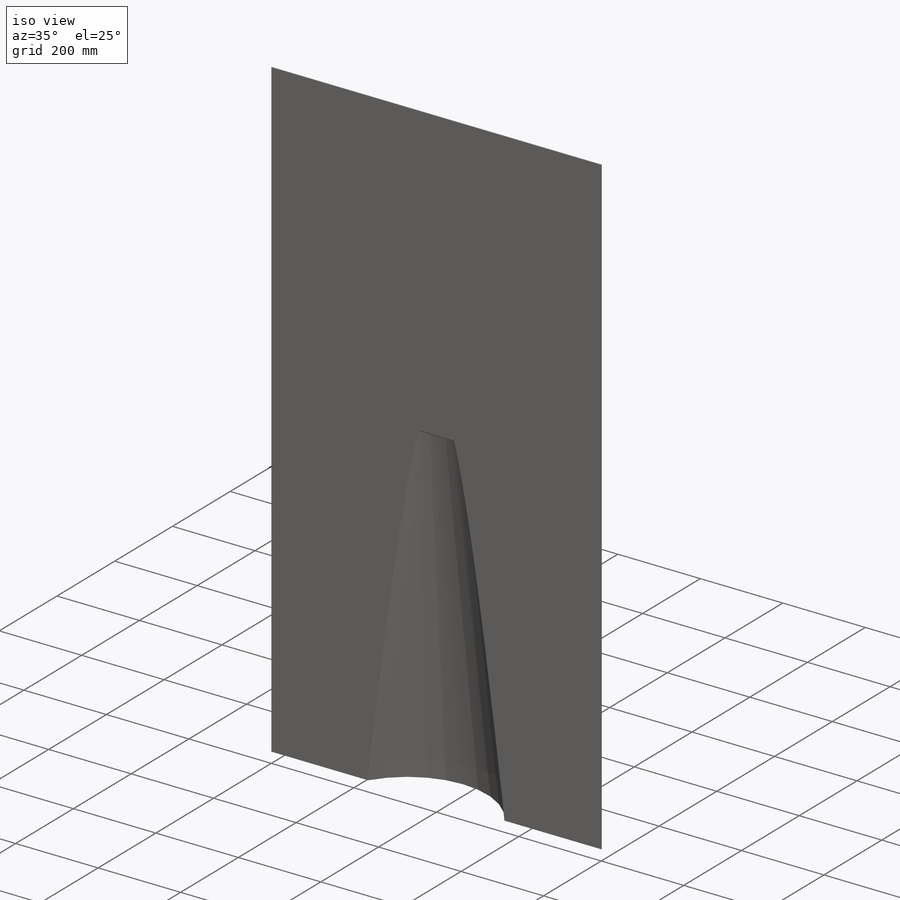
[diagram: iso view]
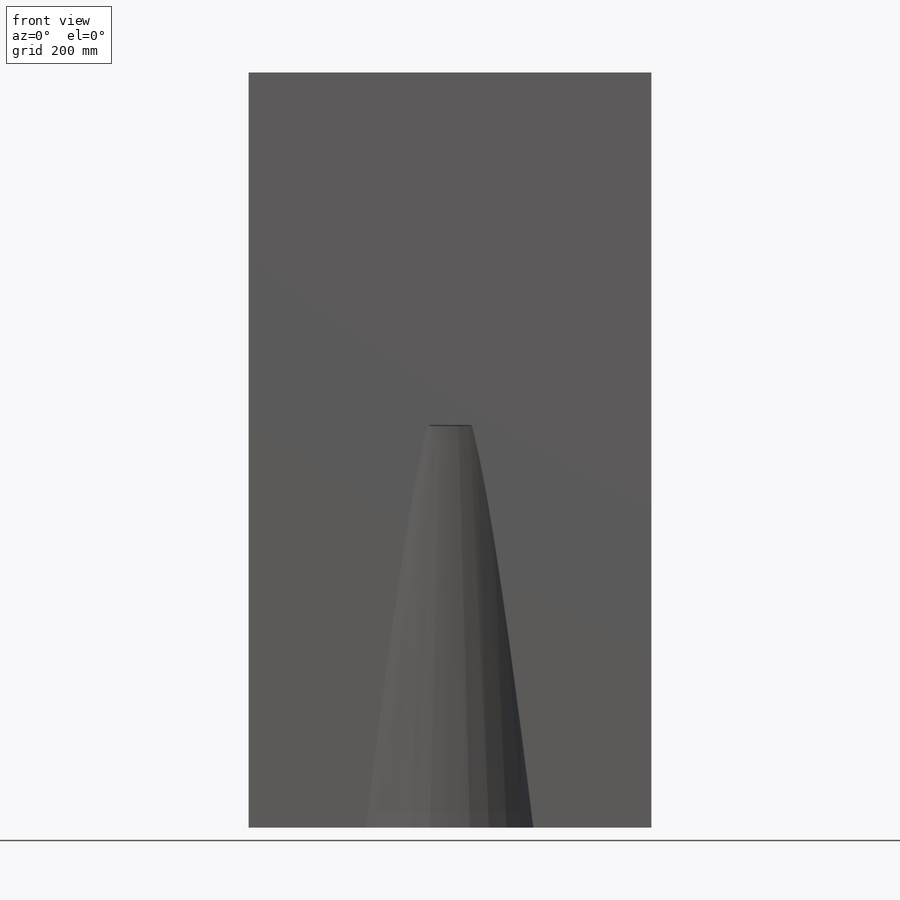
[diagram: front view]
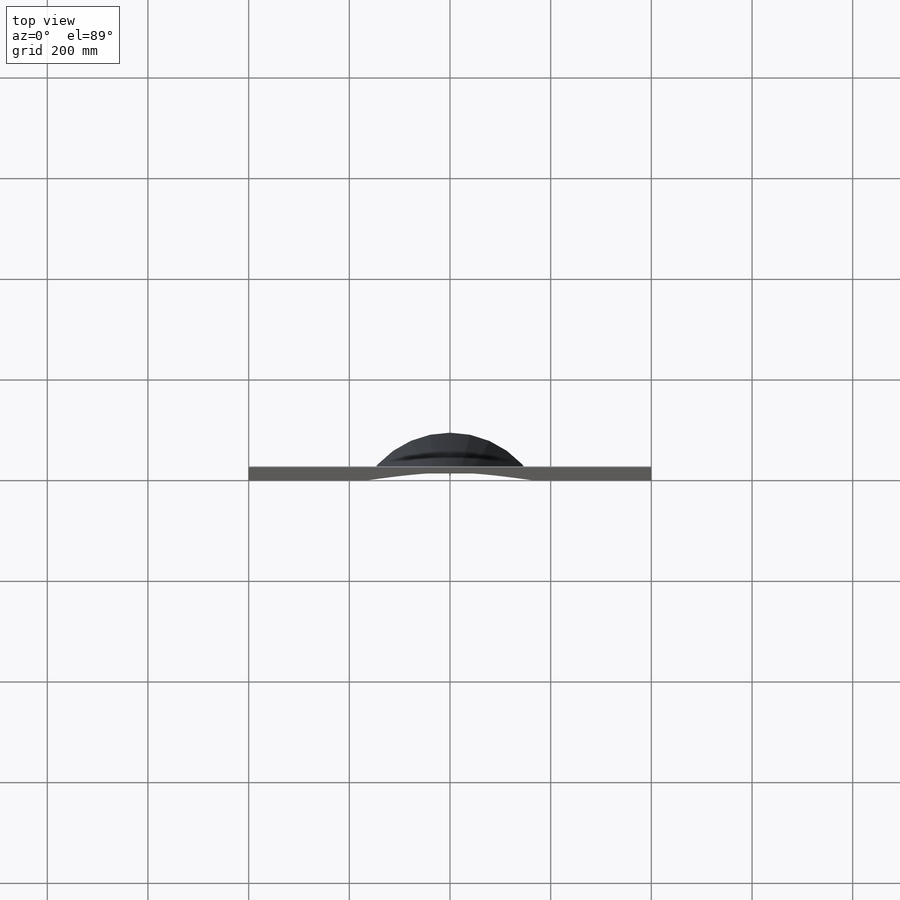
[diagram: top view]
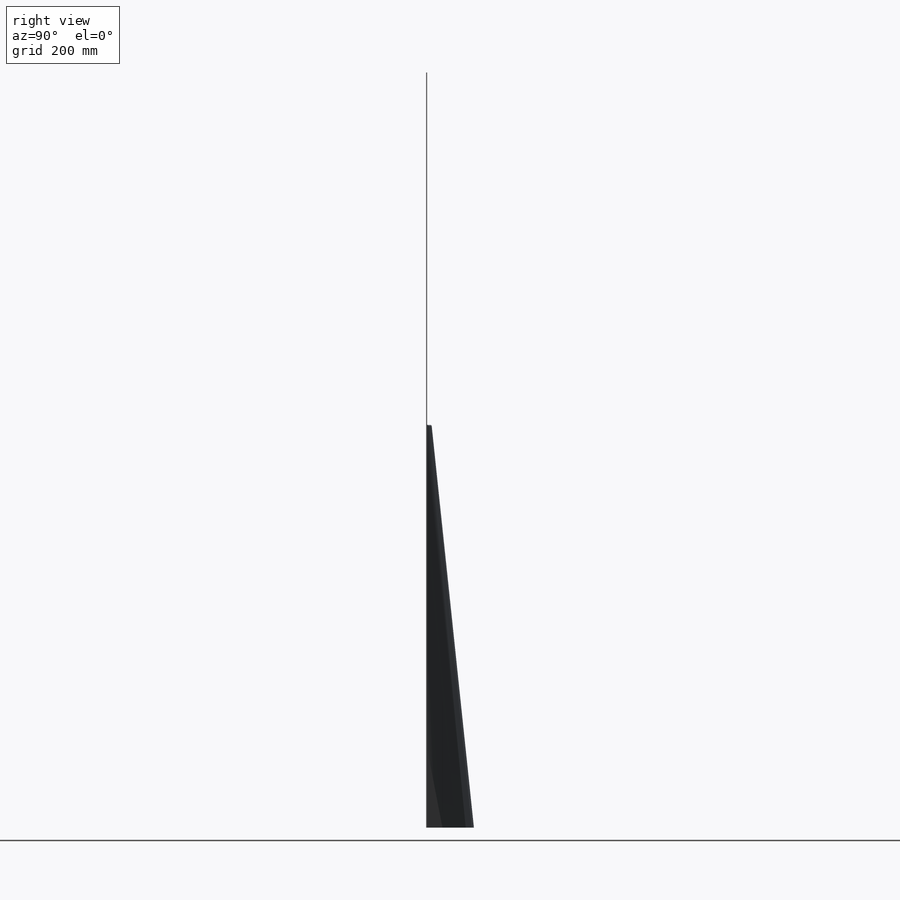
[diagram: right view]
SOLIDWORKS PART (.sldprt)
format: sldprt  version: not decoded by parser v0  size: 232,448 bytes
history: native  units: mm
features: sketch x5, fillet x5, plane x3, sheet_metal_op x2, shell x2, material x1, extrude x1 + 1 further entry (+8 scaffold rows collapsed; 1 parser-record rows omitted)
feature tree (29):
  scaffold x8  (default folders/planes/origin — collapsed)
  material  "Material <nicht festgelegt>"
  plane  "Ebene vorne"
  plane  "Ebene oben"
  plane  "Ebene rechts"
  sketch  "Skizze1"  dims[D1=1500.0mm D2=800.0mm]
  sheet_metal_op  "Blech1"
  sheet_metal_op  "Basis-Blech1"
  sketch  "Skizze4"  dims[D1=390.0mm D2=100.0mm]
  extrude  "Aufsatz-Linear austragen1"  Depth=800mm
  shell  "Wandung1"  Thickness=2mm
  sketch  "Skizze5"
  shell  "Schnitt-Linear austragen2"  [1 undecoded]
  fillet  "Verrundung1"  Radius=1mm
  fillet  "Verrundung2"  Radius=1mm
  fillet  "Verrundung3"  Radius=3mm
  fillet  "Verrundung4"  Radius=3mm
  fillet  "Verrundung5"  Radius=1mm
  "Abwicklung1"
  sketch  "Biegung-Linien1"
  sketch  "Rahmen1"
  parser-record x1  (decoder bookkeeping rows leaked as tree rows — omitted from the tree; the rows remain in map.json)
decode coverage: 9 of 15 modeling features carry decoded parameters; 1 rows unclassified (native names shown)
note: 1 parameter value undecoded
note: suppression state not decoded; provenance and decode notes live in map.json
